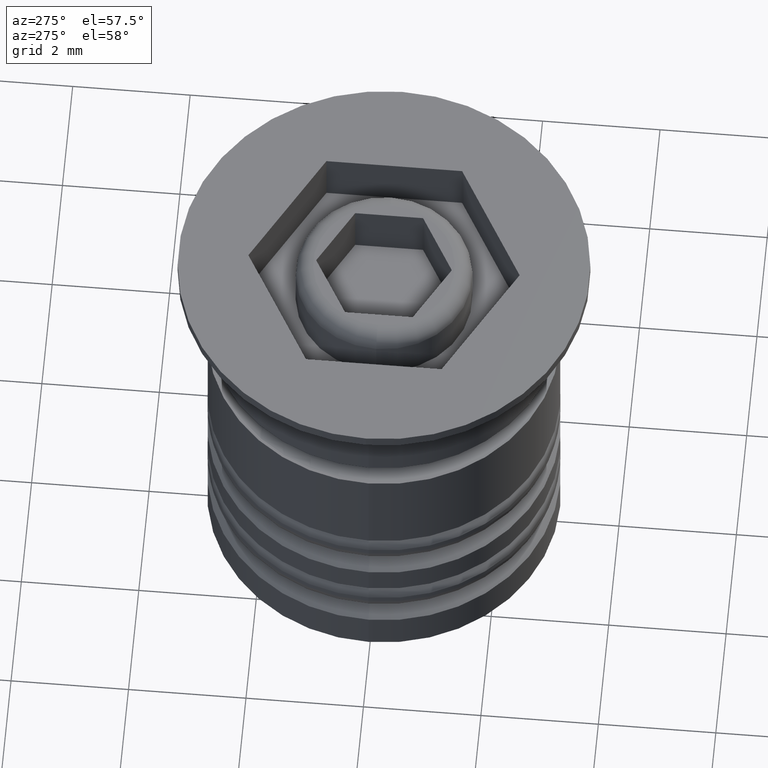
[diagram: clean part render]
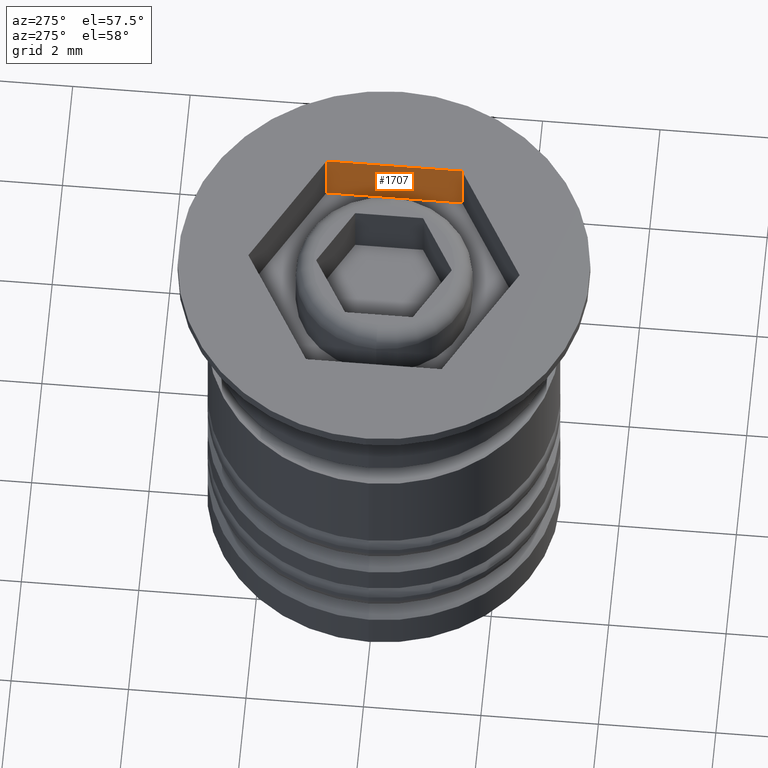
[diagram: same view with one face highlighted and labeled with its STEP entity id]
A machine part, auxiliary view. The second image highlights one B-rep face of the part: STEP entity #1707.
In plain terms, the highlighted planar face has unit normal (1, -0, 0).
Its self-contained STEP definition (entity closure, byte-faithful):
#28 = DIRECTION ( 'NONE',  ( 0.000000000000000000, 0.000000000000000000, -1.000000000000000000 ) ) ;
#248 = ORIENTED_EDGE ( 'NONE', *, *, #993, .T. ) ;
#266 = PLANE ( 'NONE',  #1089 ) ;
#276 = CARTESIAN_POINT ( 'NONE',  ( 2.000000000000000000, -1.154700538379251684, -1.000000000000000000 ) ) ;
#297 = VECTOR ( 'NONE', #784, 1000.000000000000000 ) ;
#475 = VECTOR ( 'NONE', #1263, 1000.000000000000000 ) ;
#498 = DIRECTION ( 'NONE',  ( 0.000000000000000000, 1.000000000000000000, 0.000000000000000000 ) ) ;
#546 = ORIENTED_EDGE ( 'NONE', *, *, #1428, .F. ) ;
#634 = EDGE_CURVE ( 'NONE', #1628, #946, #1216, .T. ) ;
#660 = CARTESIAN_POINT ( 'NONE',  ( 2.000000000000000000, -1.154700538379251684, 0.000000000000000000 ) ) ;
#749 = DIRECTION ( 'NONE',  ( 1.000000000000000000, -0.000000000000000000, 0.000000000000000000 ) ) ;
#784 = DIRECTION ( 'NONE',  ( 0.000000000000000000, 1.000000000000000000, 0.000000000000000000 ) ) ;
#934 = EDGE_CURVE ( 'NONE', #1312, #946, #1198, .T. ) ;
#946 = VERTEX_POINT ( 'NONE', #1418 ) ;
#993 = EDGE_CURVE ( 'NONE', #1734, #1628, #1830, .T. ) ;
#1007 = CARTESIAN_POINT ( 'NONE',  ( 2.000000000000000000, -1.154700538379251684, -1.000000000000000000 ) ) ;
#1015 = CARTESIAN_POINT ( 'NONE',  ( 2.000000000000000000, -1.154700538379251684, -1.000000000000000000 ) ) ;
#1017 = EDGE_LOOP ( 'NONE', ( #1183, #1799, #546, #248 ) ) ;
#1019 = LINE ( 'NONE', #1314, #1493 ) ;
#1089 = AXIS2_PLACEMENT_3D ( 'NONE', #1007, #749, #28 ) ;
#1183 = ORIENTED_EDGE ( 'NONE', *, *, #634, .T. ) ;
#1198 = LINE ( 'NONE', #1747, #1814 ) ;
#1209 = DIRECTION ( 'NONE',  ( -0.000000000000000000, -0.000000000000000000, 1.000000000000000000 ) ) ;
#1216 = LINE ( 'NONE', #660, #297 ) ;
#1246 = FACE_OUTER_BOUND ( 'NONE', #1017, .T. ) ;
#1263 = DIRECTION ( 'NONE',  ( -0.000000000000000000, -0.000000000000000000, 1.000000000000000000 ) ) ;
#1287 = CARTESIAN_POINT ( 'NONE',  ( 2.000000000000000000, 1.154700538379251240, -1.000000000000000000 ) ) ;
#1312 = VERTEX_POINT ( 'NONE', #1287 ) ;
#1314 = CARTESIAN_POINT ( 'NONE',  ( 2.000000000000000000, -1.154700538379251684, -1.000000000000000000 ) ) ;
#1418 = CARTESIAN_POINT ( 'NONE',  ( 2.000000000000000000, 1.154700538379251240, 0.000000000000000000 ) ) ;
#1428 = EDGE_CURVE ( 'NONE', #1734, #1312, #1019, .T. ) ;
#1493 = VECTOR ( 'NONE', #498, 1000.000000000000000 ) ;
#1628 = VERTEX_POINT ( 'NONE', #1806 ) ;
#1707 = ADVANCED_FACE ( 'NONE', ( #1246 ), #266, .F. ) ;
#1734 = VERTEX_POINT ( 'NONE', #1015 ) ;
#1747 = CARTESIAN_POINT ( 'NONE',  ( 2.000000000000000000, 1.154700538379251240, -1.000000000000000000 ) ) ;
#1799 = ORIENTED_EDGE ( 'NONE', *, *, #934, .F. ) ;
#1806 = CARTESIAN_POINT ( 'NONE',  ( 2.000000000000000000, -1.154700538379251684, 0.000000000000000000 ) ) ;
#1814 = VECTOR ( 'NONE', #1209, 1000.000000000000000 ) ;
#1830 = LINE ( 'NONE', #276, #475 ) ;